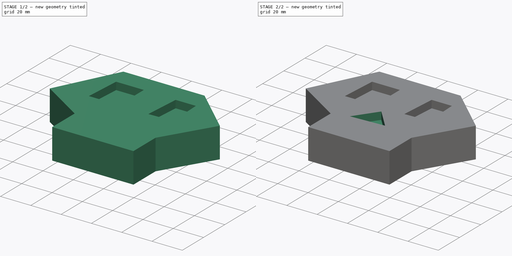
[diagram: build sequence overview — one tinted view per stage of 2, left to right]
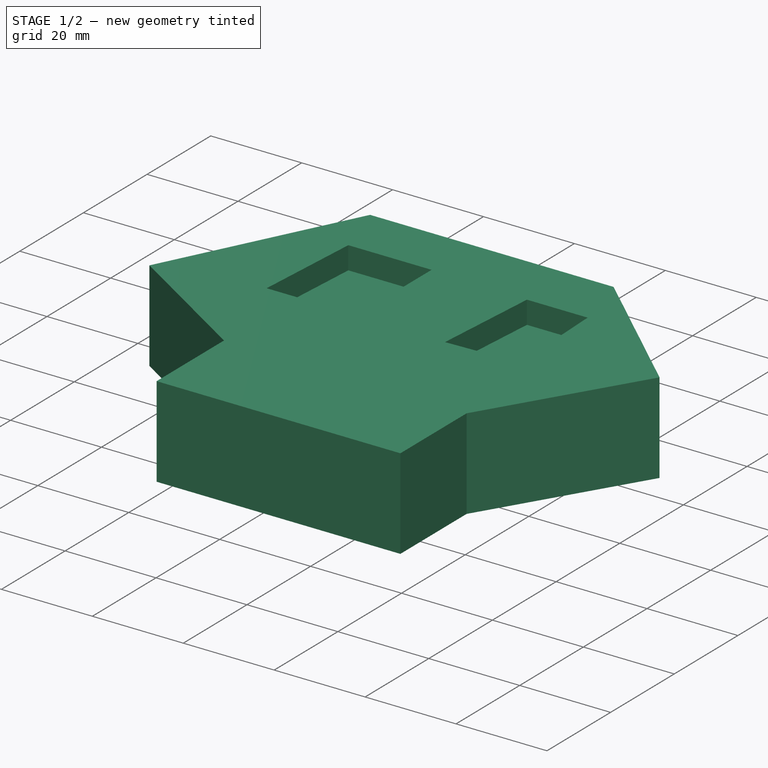
[diagram: stage 1 of 2 — iso view after this stage's code; geometry added in this stage tinted green]
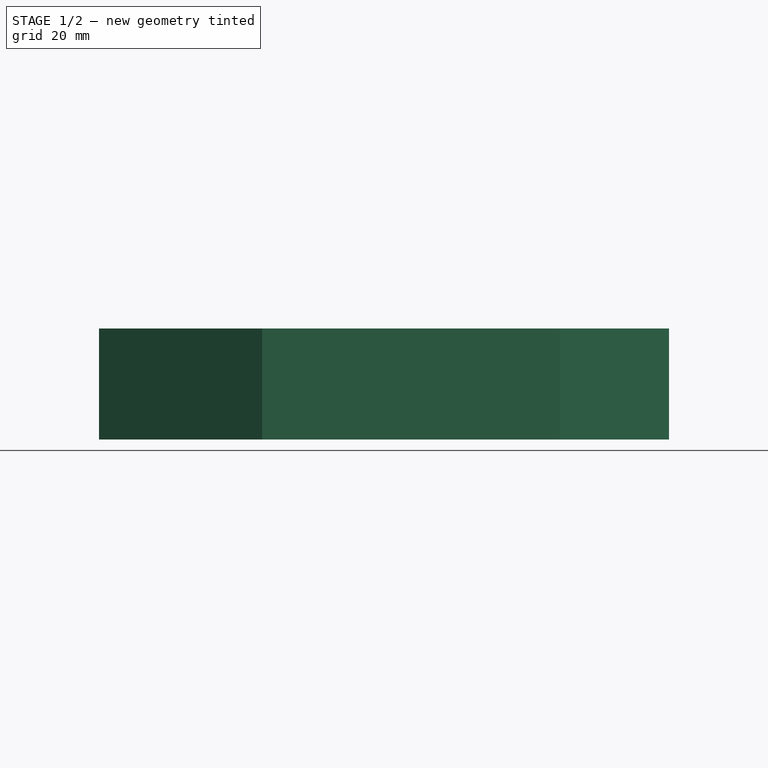
[diagram: stage 1 of 2 — front view after this stage's code; geometry added in this stage tinted green]
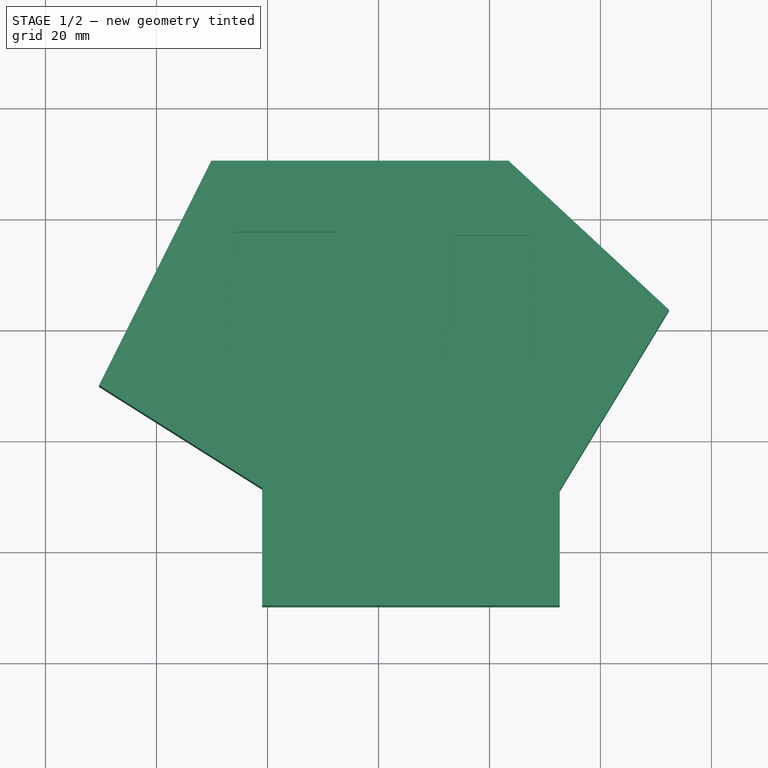
[diagram: stage 1 of 2 — top view after this stage's code; geometry added in this stage tinted green]
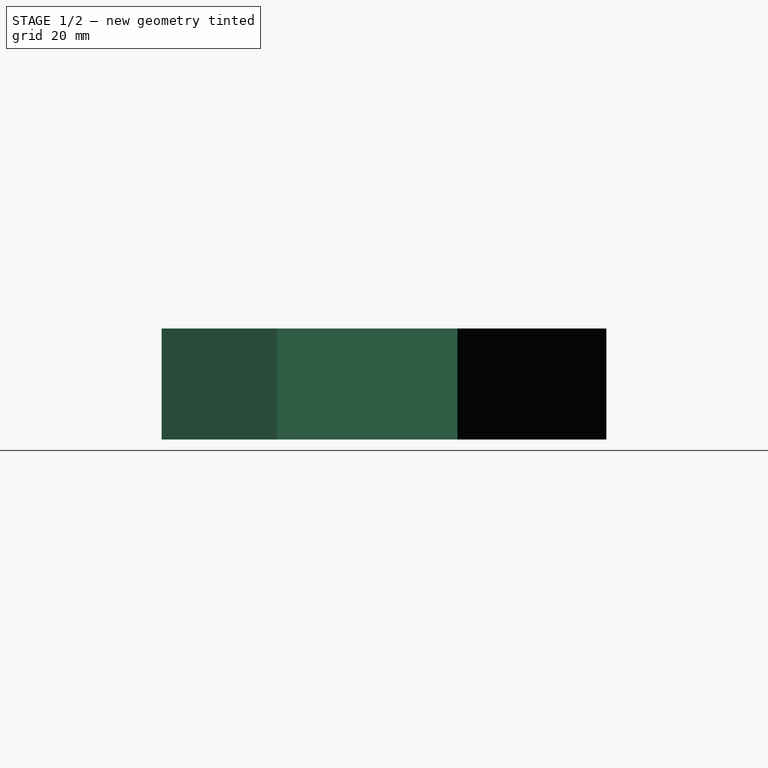
[diagram: stage 1 of 2 — right view after this stage's code; geometry added in this stage tinted green]
FCSTD DOCUMENT  (FreeCAD 0.20R29177 +426 (Git))
Label: croquies2
License: All rights reserved
LicenseURL: http://en.wikipedia.org/wiki/All_rights_reserved
objects: Sketcher::SketchObject×4, PartDesign::Pocket×2, PartDesign::Pad×1, PartDesign::Body×1
note: 11 computed .brp shape members not serialized (recipe doc carries the construction recipe); baked Part::Feature solids carry a one-line shape summary decoded from their .brp

FEATURE [Sketcher::SketchObject] Sketch
  FullyConstrained = false
  MapMode = 5
  Support = -> [XY_Plane]
  sketch-geometry (8):
    g0: LineSegment StartX=-30.125 StartY=30.2873 StartZ=0 EndX=23.4375 EndY=30.2873 EndZ=0
    g1: LineSegment StartX=23.4375 StartY=30.2873 StartZ=0 EndX=52.3438 EndY=3.4375 EndZ=0
    g2: LineSegment StartX=52.3438 StartY=3.4375 StartZ=0 EndX=32.6562 EndY=-29.0625 EndZ=0
    g3: LineSegment StartX=32.6562 StartY=-29.0625 StartZ=0 EndX=32.6562 EndY=-49.8673 EndZ=0
    g4: LineSegment StartX=32.6562 StartY=-49.8673 StartZ=0 EndX=-20.9645 EndY=-49.8673 EndZ=0
    g5: LineSegment StartX=-20.9645 StartY=-49.8673 StartZ=0 EndX=-20.9645 EndY=-28.6836 EndZ=0
    g6: LineSegment StartX=-20.9645 StartY=-28.6836 StartZ=0 EndX=-50.3545 EndY=-10.1717 EndZ=0
    g7: LineSegment StartX=-50.3545 StartY=-10.1717 StartZ=0 EndX=-30.125 EndY=30.2873 EndZ=0
  constraints (12):
    c: Horizontal(g0)
    c: Coincident(g0,g1)
    c: Coincident(g1,g2)
    c: Coincident(g2,g3)
    c: Vertical(g3)
    c: Coincident(g3,g4)
    c: Horizontal(g4)
    c: Coincident(g4,g5)
    c: Vertical(g5)
    c: Coincident(g5,g6)
    c: Coincident(g6,g7)
    c: Coincident(g7,g0)
FEATURE [PartDesign::Pad] Pad
  Direction = (0,0,1)
  Length = 20
  Length2 = 10
  Profile = -> Sketch
  ReferenceAxis = -> Sketch [N_Axis]
  Type = 0
FEATURE [Sketcher::SketchObject] Sketch001
  FullyConstrained = false
  MapMode = 5
  Placement = pos=(0,0,20) rot=(0,0,1;0rad)
  Support = -> [Pad]
  sketch-geometry (8):
    g0: LineSegment StartX=-25.9274 StartY=17.4415 StartZ=0 EndX=-7.6064 EndY=17.4415 EndZ=0
    g1: LineSegment StartX=-7.6064 StartY=17.4415 StartZ=0 EndX=-7.6064 EndY=-6.03236 EndZ=0
    g2: LineSegment StartX=-7.6064 StartY=-6.03236 StartZ=0 EndX=-27.4542 EndY=-6.03236 EndZ=0
    g3: LineSegment StartX=-27.4542 StartY=-6.03236 StartZ=0 EndX=-25.9274 EndY=17.4415 EndZ=0
    g4: LineSegment StartX=13.7682 StartY=16.8689 StartZ=0 EndX=27.1273 EndY=16.8689 EndZ=0
    g5: LineSegment StartX=27.1273 StartY=16.8689 StartZ=0 EndX=28.0815 EndY=-5.84152 EndZ=0
    g6: LineSegment StartX=28.0815 StartY=-5.84152 StartZ=0 EndX=12.0506 EndY=-6.41405 EndZ=0
    g7: LineSegment StartX=12.0506 StartY=-6.41405 StartZ=0 EndX=13.7682 EndY=16.8689 EndZ=0
  constraints (12):
    c: Horizontal(g0)
    c: Coincident(g0,g1)
    c: Vertical(g1)
    c: Coincident(g1,g2)
    c: Horizontal(g2)
    c: Coincident(g2,g3)
    c: Coincident(g3,g0)
    c: Horizontal(g4)
    c: Coincident(g4,g5)
    c: Coincident(g5,g6)
    c: Coincident(g6,g7)
    c: Coincident(g7,g4)
FEATURE [PartDesign::Pocket] Pocket
  BaseFeature = -> Pad
  Direction = (0,0,-1)
  Length = 5
  Length2 = 5
  Profile = -> Sketch001
  ReferenceAxis = -> Sketch001 [N_Axis]
  Type = 0
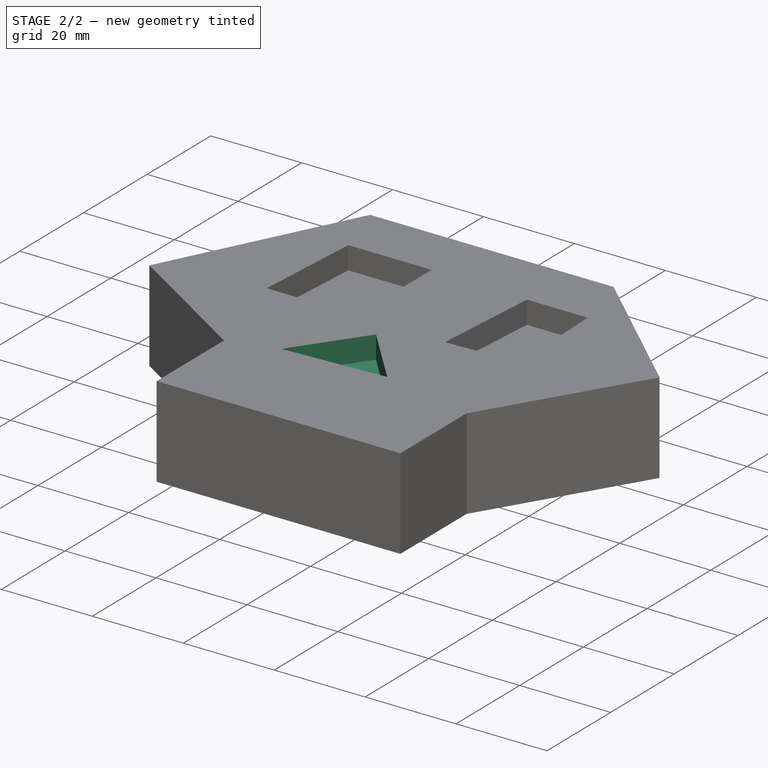
[diagram: stage 2 of 2 — iso view after this stage's code; geometry added in this stage tinted green]
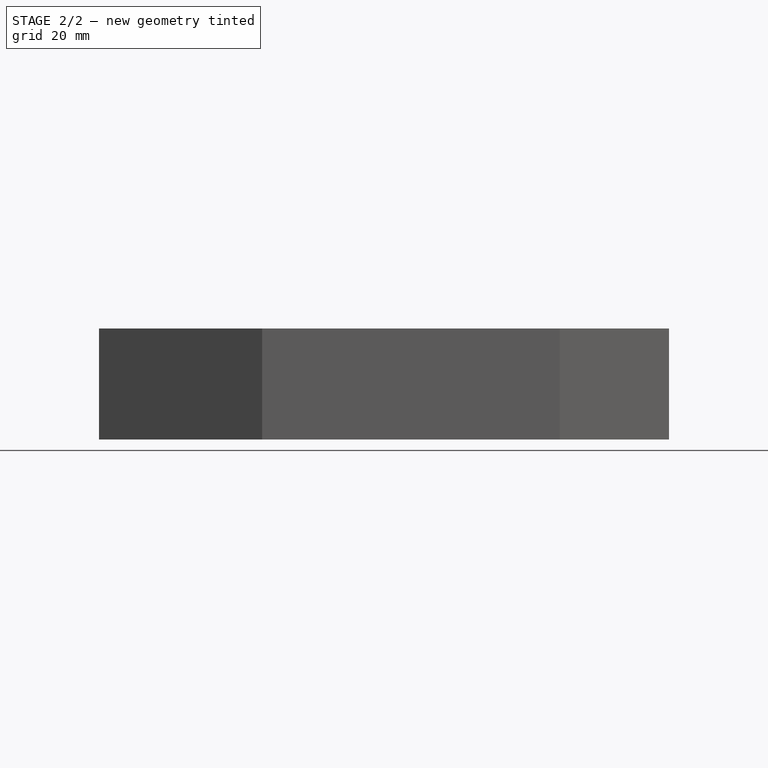
[diagram: stage 2 of 2 — front view after this stage's code; geometry added in this stage tinted green]
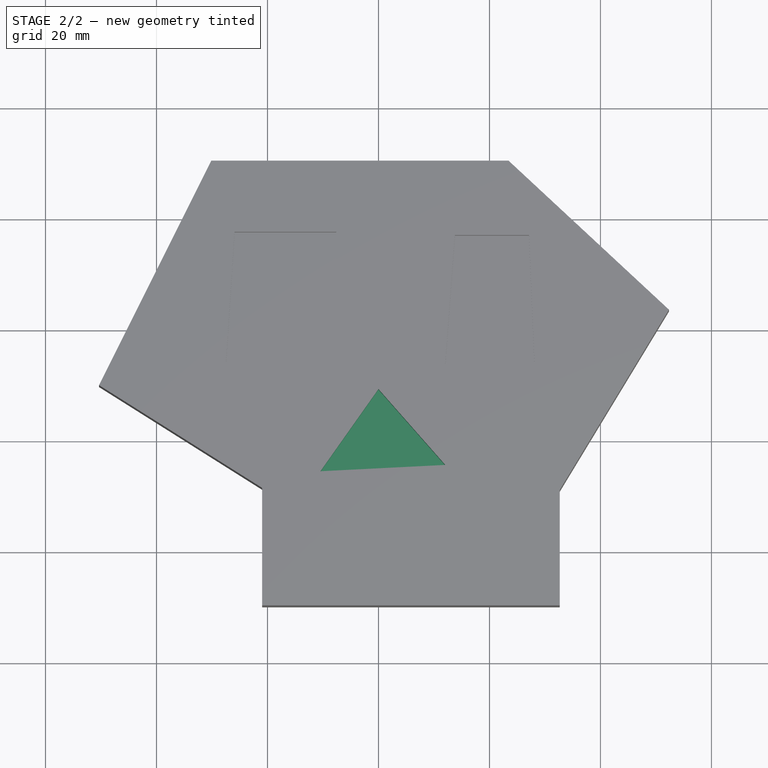
[diagram: stage 2 of 2 — top view after this stage's code; geometry added in this stage tinted green]
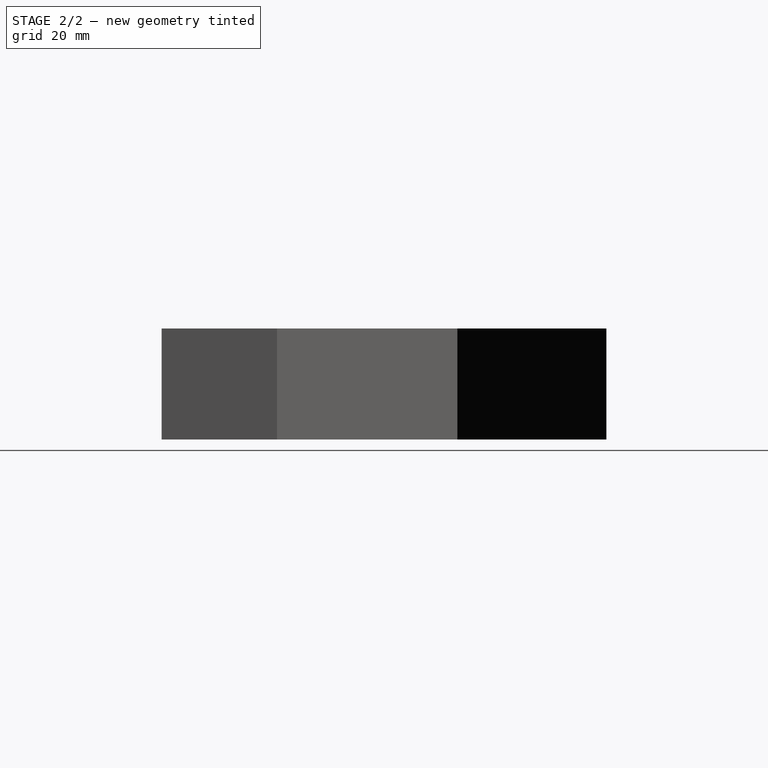
[diagram: stage 2 of 2 — right view after this stage's code; geometry added in this stage tinted green]
FEATURE [Sketcher::SketchObject] Sketch002
  FullyConstrained = false
  MapMode = 5
  Placement = pos=(0,0,20) rot=(0,0,1;0rad)
  Support = -> [Pocket]
  sketch-geometry (3):
    g0: LineSegment StartX=0 StartY=-10.8817 StartZ=0 EndX=-10.4576 EndY=-25.6864 EndZ=0
    g1: LineSegment StartX=-10.4576 StartY=-25.6864 StartZ=0 EndX=12.0342 EndY=-24.5476 EndZ=0
    g2: LineSegment StartX=12.0342 StartY=-24.5476 StartZ=0 EndX=0 EndY=-10.8817 EndZ=0
  constraints (4):
    c: PointOnObject(g0,g-2)
    c: Coincident(g0,g1)
    c: Coincident(g1,g2)
    c: Coincident(g2,g0)
FEATURE [PartDesign::Pocket] Pocket001
  BaseFeature = -> Pocket
  Direction = (0,0,-1)
  Length = 5
  Length2 = 5
  Profile = -> Sketch002
  ReferenceAxis = -> Sketch002 [N_Axis]
  Type = 0
FEATURE [Sketcher::SketchObject] Sketch003
  FullyConstrained = false
  MapMode = 5
  Placement = pos=(0,0,20) rot=(0,0,1;0rad)
  Support = -> [Pocket001]
  sketch-geometry (13):
    g0: LineSegment StartX=-12.4307 StartY=-32.3589 StartZ=0 EndX=-12.4307 EndY=-49.5348 EndZ=0
    g1: LineSegment StartX=-12.4307 StartY=-49.5348 StartZ=0 EndX=-5.87133 EndY=-49.5348 EndZ=0
    g2: LineSegment StartX=-5.87133 StartY=-49.5348 StartZ=0 EndX=-5.87133 EndY=-31.9772 EndZ=0
    g3: LineSegment StartX=-5.87133 StartY=-31.9772 StartZ=0 EndX=-12.4307 EndY=-32.7405 EndZ=0
    g4: LineSegment StartX=0 StartY=-32.7405 StartZ=0 EndX=6.72439 EndY=-32.168 EndZ=0
    g5: LineSegment StartX=6.72439 StartY=-32.168 StartZ=0 EndX=7.48776 EndY=-49.9165 EndZ=0
    g6: LineSegment StartX=7.48776 StartY=-49.9165 StartZ=0 EndX=0 EndY=-49.9165 EndZ=0
    g7: LineSegment StartX=0 StartY=-32.7405 StartZ=0 EndX=0 EndY=-49.9165 EndZ=0
    g8: LineSegment StartX=12.4497 StartY=-32.5497 StartZ=0 EndX=13.0222 EndY=-49.9165 EndZ=0
    g9: LineSegment StartX=13.0222 StartY=-49.9165 StartZ=0 EndX=22.3736 EndY=-49.7257 EndZ=0
    g10: LineSegment StartX=22.3736 StartY=-49.7257 StartZ=0 EndX=21.8011 EndY=-30.2596 EndZ=0
    g11: LineSegment StartX=21.8011 StartY=-30.2596 StartZ=0 EndX=12.2589 EndY=-33.1222 EndZ=0
    g12: LineSegment StartX=12.2589 StartY=-33.1222 StartZ=0 EndX=13.0222 EndY=-32.5497 EndZ=0
  constraints (24):
    c: Vertical(g0)
    c: Coincident(g0,g1)
    c: Horizontal(g1)
    c: Coincident(g1,g2)
    c: Vertical(g2)
    c: Coincident(g2,g3)
    c: PointOnObject(g3,g0)
    c: PointOnObject(g4,g-2)
    c: Coincident(g4,g5)
    c: Coincident(g5,g6)
    c: PointOnObject(g6,g-2)
    c: Horizontal(g6)
    c: Coincident(g4,g7)
    c: Coincident(g7,g6)
    c: Vertical(g7)
    c: Vertical(g8)
    c: Coincident(g8,g9)
    c: Horizontal(g9)
    c: Coincident(g9,g10)
    c: Vertical(g10)
    c: Coincident(g10,g11)
    c: PointOnObject(g11,g8)
    c: Coincident(g11,g12)
    c: PointOnObject(g12,g11)
FEATURE [PartDesign::Body] Body
  Group = -> [Sketch,Pad,Sketch001,Pocket,Sketch002,Pocket001,Sketch003]
  Origin = -> Origin
  Tip = -> Pocket001
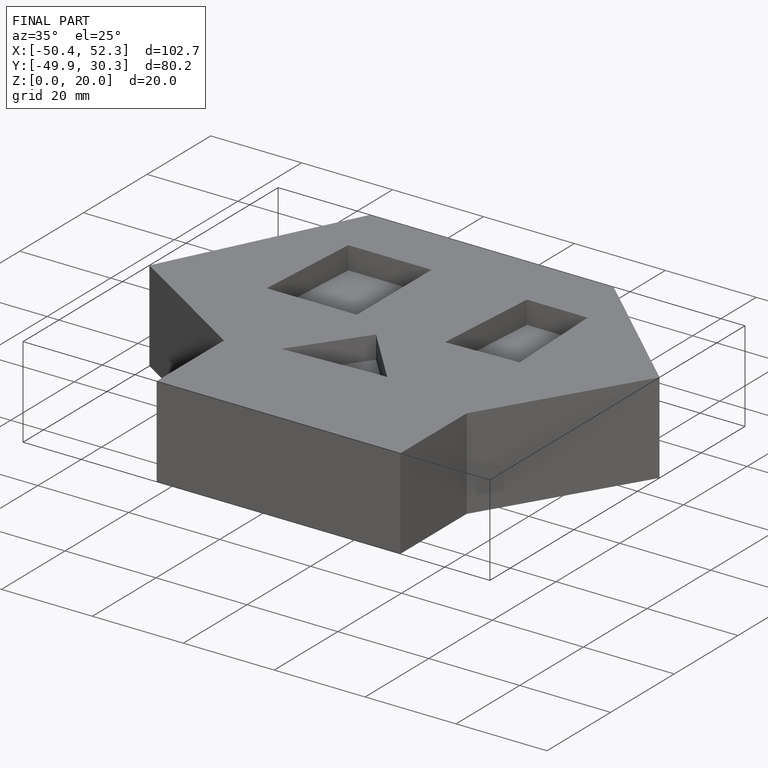
[diagram: finished part — iso view with bounding-box wireframe]
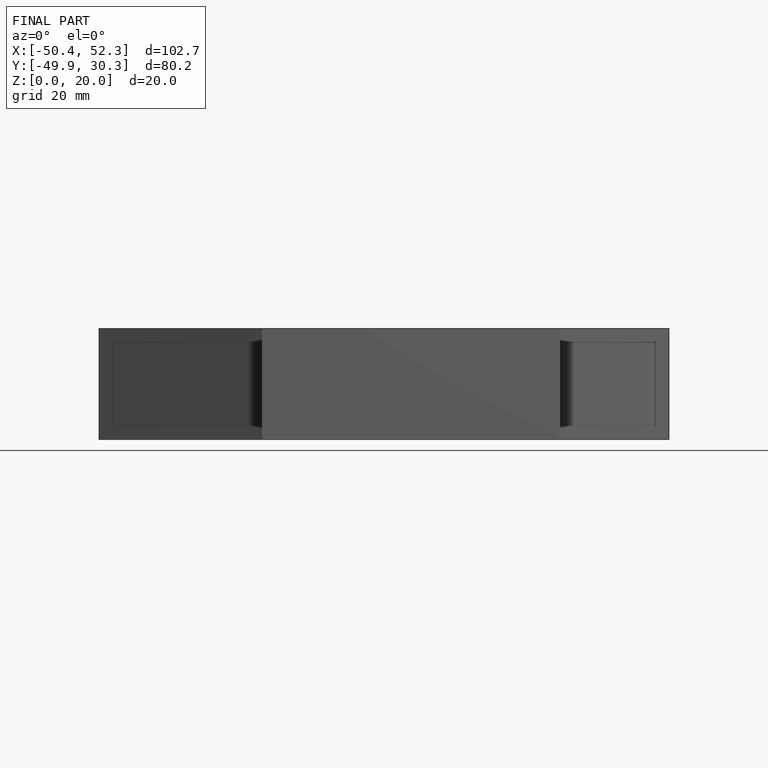
[diagram: finished part — front view with bounding-box wireframe]
